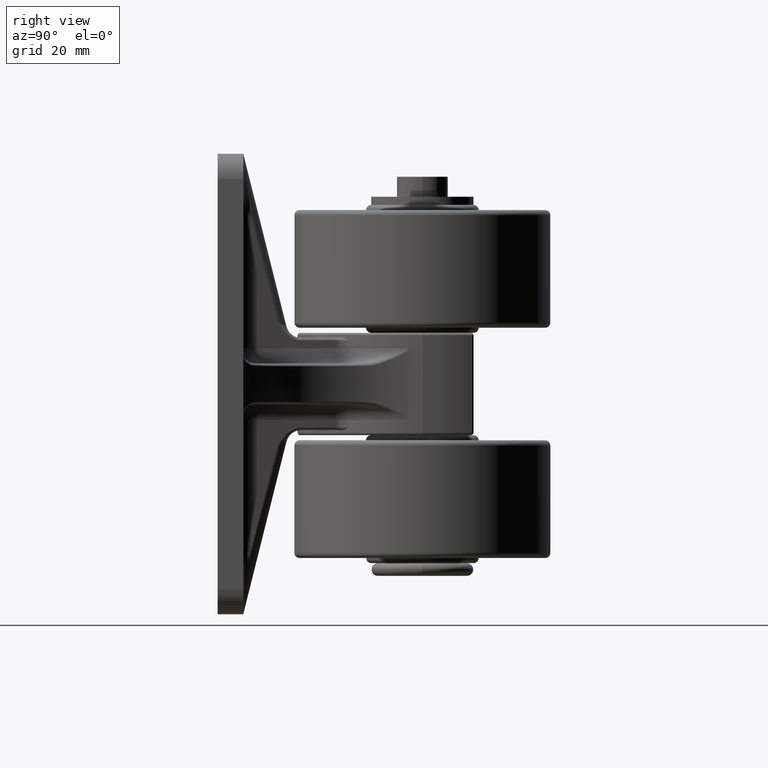
[diagram: clean part render]
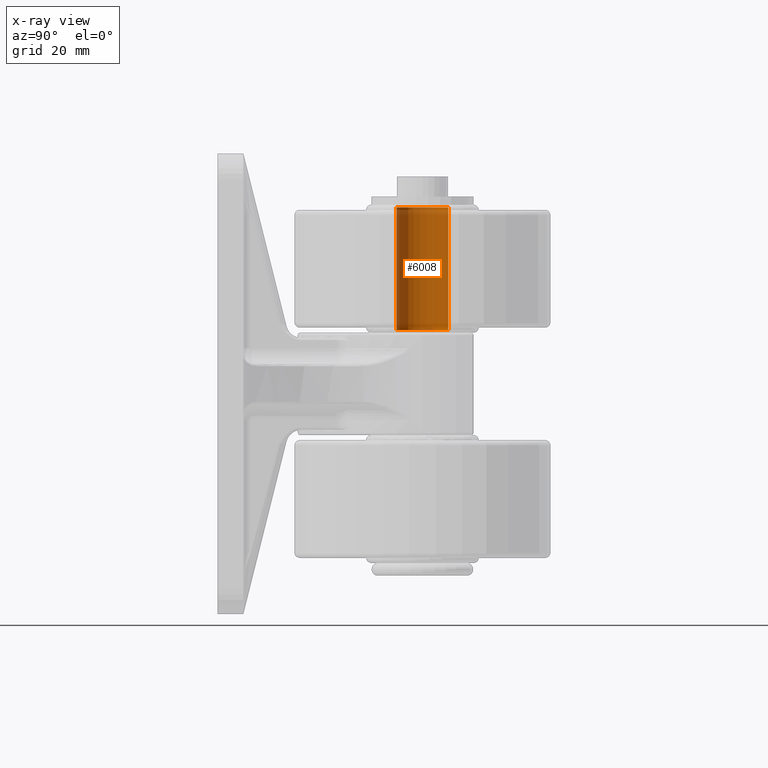
[diagram: x-ray — body ghosted, one internal face saturated and labeled with its STEP entity id]
A machine part, right view, then the same camera in x-ray: the body is ghosted and one INTERNAL B-rep face — a face not visible from any outside direction — is saturated and labeled: STEP entity #6008.
In plain terms, the highlighted cylindrical surface (edge-blend (fillet) strip) has radius 5.05 mm, axis along (0, 0, 1).
Its self-contained STEP definition (entity closure, byte-faithful):
#288 = CARTESIAN_POINT ( 'NONE',  ( -34.50000000000000000, 0.0000000000000000000, -45.00000000000000000 ) ) ;
#324 = CARTESIAN_POINT ( 'NONE',  ( -10.49999999999999100, 0.0000000000000000000, -45.00000000000000000 ) ) ;
#385 = VECTOR ( 'NONE', #7006, 1000.000000000000000 ) ;
#479 = ORIENTED_EDGE ( 'NONE', *, *, #14441, .F. ) ;
#706 = FACE_OUTER_BOUND ( 'NONE', #4726, .T. ) ;
#1204 = CARTESIAN_POINT ( 'NONE',  ( -34.50000000000000000, -5.048535975329916600, -45.12159155315897200 ) ) ;
#1581 = DIRECTION ( 'NONE',  ( 0.0000000000000000000, -0.9997100941247357700, -0.02407753527900479600 ) ) ;
#2577 = AXIS2_PLACEMENT_3D ( 'NONE', #2601, #9164, #15899 ) ;
#2601 = CARTESIAN_POINT ( 'NONE',  ( -10.00000000000000200, 0.0000000000000000000, -45.00000000000000000 ) ) ;
#2618 = ORIENTED_EDGE ( 'NONE', *, *, #6500, .T. ) ;
#3132 = EDGE_CURVE ( 'NONE', #5729, #11692, #4893, .T. ) ;
#3345 = VERTEX_POINT ( 'NONE', #9404 ) ;
#4435 = DIRECTION ( 'NONE',  ( -1.000000000000000000, 0.0000000000000000000, 0.0000000000000000000 ) ) ;
#4726 = EDGE_LOOP ( 'NONE', ( #2618, #12380, #9522, #479 ) ) ;
#4893 = CIRCLE ( 'NONE', #13398, 5.050000000000000700 ) ;
#4948 = LINE ( 'NONE', #13760, #11676 ) ;
#5056 = CARTESIAN_POINT ( 'NONE',  ( -10.49999999999999100, 5.048535975329931700, -44.87840844684101400 ) ) ;
#5729 = VERTEX_POINT ( 'NONE', #15168 ) ;
#6008 = ADVANCED_FACE ( 'NONE', ( #706 ), #7091, .F. ) ;
#6213 = AXIS2_PLACEMENT_3D ( 'NONE', #324, #9379, #1581 ) ;
#6500 = EDGE_CURVE ( 'NONE', #3345, #14232, #15151, .T. ) ;
#7006 = DIRECTION ( 'NONE',  ( -1.000000000000000000, 0.0000000000000000000, 0.0000000000000000000 ) ) ;
#7091 = CYLINDRICAL_SURFACE ( 'NONE', #2577, 5.050000000000000700 ) ;
#9164 = DIRECTION ( 'NONE',  ( -1.000000000000000000, 0.0000000000000000000, 0.0000000000000000000 ) ) ;
#9379 = DIRECTION ( 'NONE',  ( 1.000000000000000000, -0.0000000000000000000, -0.0000000000000000000 ) ) ;
#9404 = CARTESIAN_POINT ( 'NONE',  ( -10.49999999999999100, -5.048535975329931700, -45.12159155315897900 ) ) ;
#9522 = ORIENTED_EDGE ( 'NONE', *, *, #3132, .T. ) ;
#9526 = DIRECTION ( 'NONE',  ( 0.0000000000000000000, -0.9997100941247357700, -0.02407753527900479600 ) ) ;
#9548 = DIRECTION ( 'NONE',  ( -1.000000000000000000, 0.0000000000000000000, 0.0000000000000000000 ) ) ;
#11676 = VECTOR ( 'NONE', #4435, 1000.000000000000000 ) ;
#11692 = VERTEX_POINT ( 'NONE', #1204 ) ;
#11868 = EDGE_CURVE ( 'NONE', #14232, #5729, #4948, .T. ) ;
#12380 = ORIENTED_EDGE ( 'NONE', *, *, #11868, .T. ) ;
#13398 = AXIS2_PLACEMENT_3D ( 'NONE', #288, #9548, #9526 ) ;
#13760 = CARTESIAN_POINT ( 'NONE',  ( -10.00000000000000200, 5.048535975329916600, -44.87840844684102100 ) ) ;
#14232 = VERTEX_POINT ( 'NONE', #5056 ) ;
#14370 = LINE ( 'NONE', #16461, #385 ) ;
#14441 = EDGE_CURVE ( 'NONE', #3345, #11692, #14370, .T. ) ;
#15151 = CIRCLE ( 'NONE', #6213, 5.050000000000000700 ) ;
#15168 = CARTESIAN_POINT ( 'NONE',  ( -34.50000000000000000, 5.048535975329916600, -44.87840844684102100 ) ) ;
#15899 = DIRECTION ( 'NONE',  ( 0.0000000000000000000, -0.9997100941247357700, -0.02407753527900479600 ) ) ;
#16461 = CARTESIAN_POINT ( 'NONE',  ( -10.00000000000000200, -5.048535975329916600, -45.12159155315897200 ) ) ;